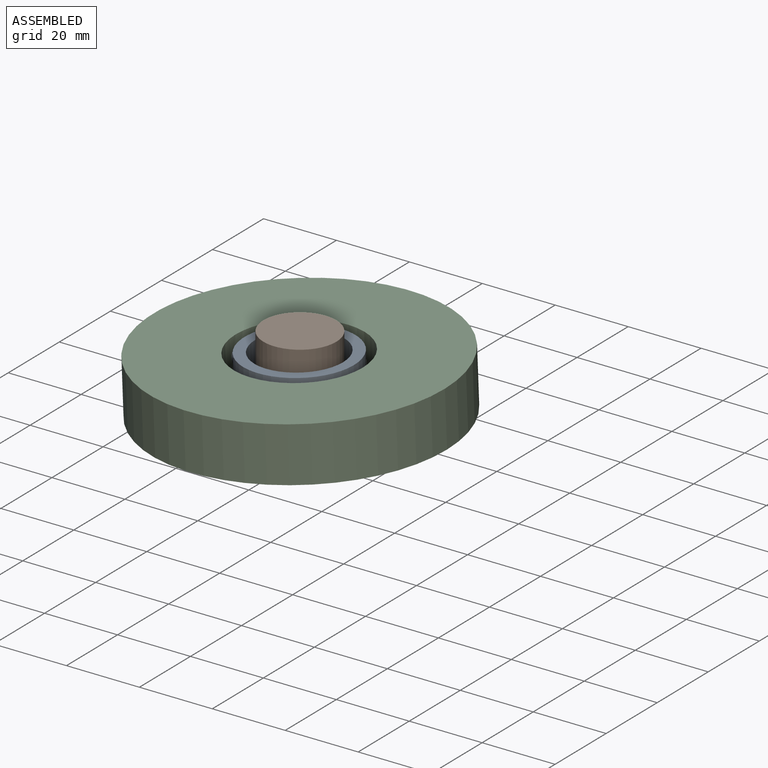
[diagram: assembled view]
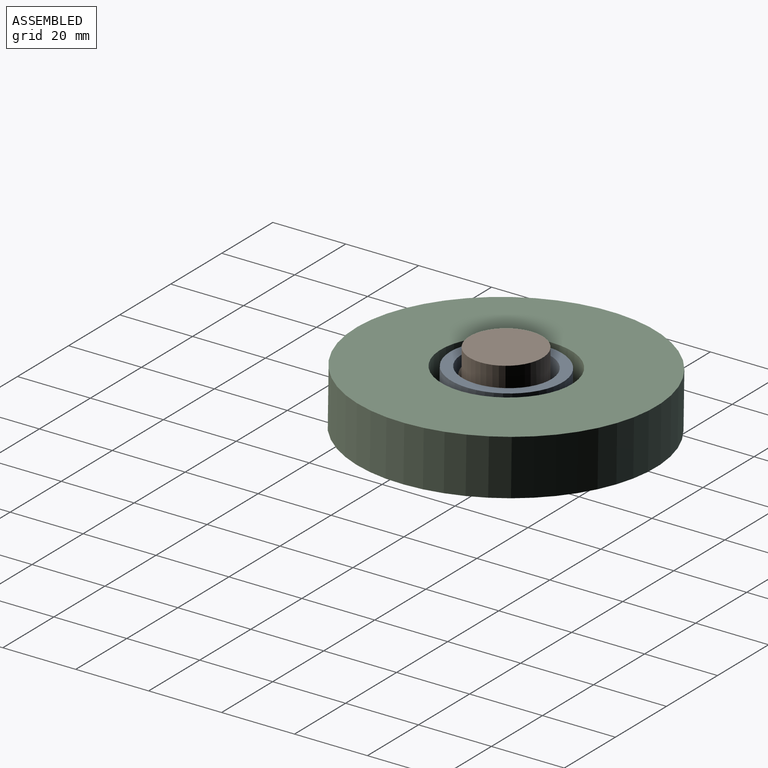
[diagram: assembled view, second angle]
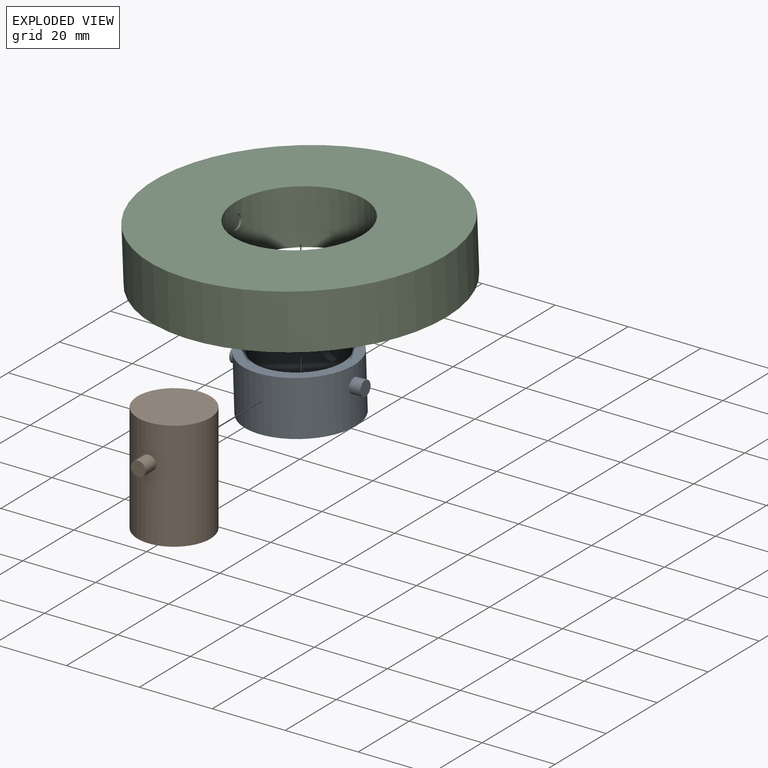
[diagram: exploded view]
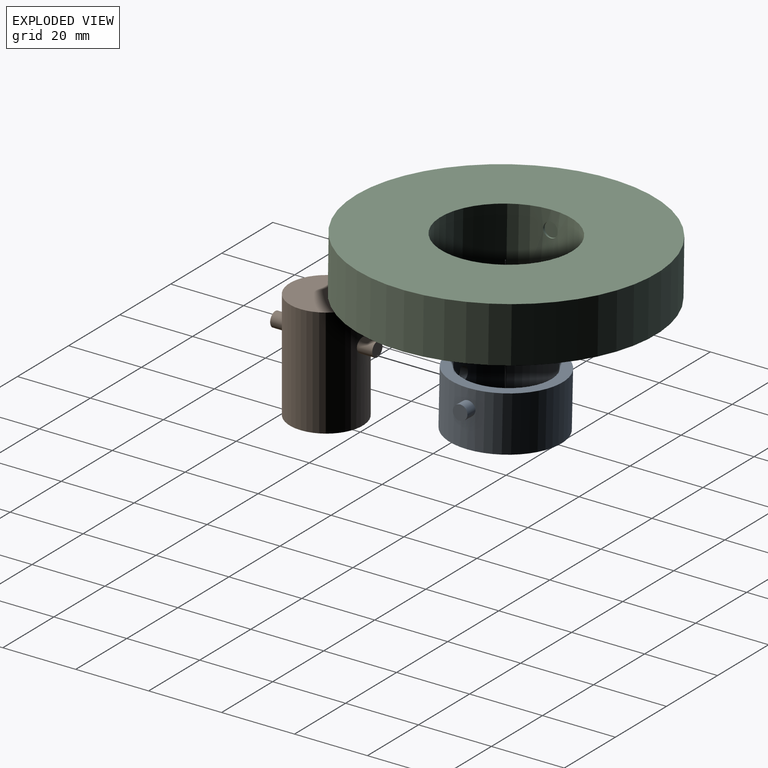
[diagram: exploded view, second angle]
ASSEMBLY  parts=3 mates=2
PART A: 12 faces, bbox 36x30x15 mm
  f0: cylinder r=15mm len=30mm, axis (0,0,-1), area 1388.5mm2, adj f2,f3,f8,f10
  f1: cylinder r=12mm len=24mm, axis (0,0,-1), area 1105.8mm2, adj f2,f3,f5,f6
  f2: plane 30x30mm, normal (0,0,1), area 254.5mm2, adj f0,f1
  f3: plane 30x30mm, normal (0,0,-1), area 254.5mm2, adj f0,f1
  f4: plane 4x4mm, normal (0,1,0), area 12.6mm2, adj f5
  f5: cylinder r=2mm len=4mm, axis (0,1,0), area 26.2mm2, adj f1,f4
  f6: cylinder r=2mm len=4mm, axis (0,1,0), area 26.2mm2, adj f1,f7
  f7: plane 4x4mm, normal (0,-1,0), area 12.6mm2, adj f6
  f8: cylinder r=2mm len=4mm, axis (-1,0,0), area 38.5mm2, adj f0,f9
  f9: plane 4x4mm, normal (1,0,0), area 12.6mm2, adj f8
  f10: cylinder r=2mm len=4mm, axis (-1,0,0), area 38.5mm2, adj f0,f11
  f11: plane 4x4mm, normal (-1,0,0), area 12.6mm2, adj f10
PART B: 7 faces, bbox 20x28x30 mm
  f0: cylinder r=10mm len=30mm, axis (0,0,-1), area 1859.8mm2, adj f1,f2,f3,f5
  f1: plane 20x20mm, normal (0,0,1), area 314.2mm2, adj f0
  f2: plane 20x20mm, normal (0,0,-1), area 314.2mm2, adj f0
  f3: cylinder r=2mm len=4.2mm, axis (0,1,0), area 51.5mm2, adj f0,f4
  f4: plane 4x4mm, normal (0,1,0), area 12.6mm2, adj f3
  f5: cylinder r=2mm len=4.2mm, axis (0,1,0), area 51.5mm2, adj f0,f6
  f6: plane 4x4mm, normal (0,-1,0), area 12.6mm2, adj f5
PART C: 8 faces, bbox 80x80x15 mm
  f0: cylinder r=17.5mm len=35mm, axis (0,0,-1), area 1624.1mm2, adj f2,f3,f5,f6
  f1: cylinder r=40mm len=80mm, axis (0,0,-1), area 3769.9mm2, adj f2,f3
  f2: plane 80x80mm, normal (0,0,1), area 4064.4mm2, adj f0,f1
  f3: plane 80x80mm, normal (0,0,-1), area 4064.4mm2, adj f0,f1
  f4: plane 4x4mm, normal (1,0,0), area 12.6mm2, adj f5
  f5: cylinder r=2mm len=4mm, axis (-1,0,0), area 7mm2, adj f0,f4
  f6: cylinder r=2mm len=4mm, axis (-1,0,0), area 7mm2, adj f0,f7
  f7: plane 4x4mm, normal (-1,0,0), area 12.6mm2, adj f6
PLACE A rot(axis=(0,-1,0),1.9deg) t=(0,0,-10)mm
PLACE B t=(0,0,-10)mm
PLACE C rot(axis=(0.23,-0.97,0),2deg) t=(0,0,-10)mm
MATE revolute B.f3 <-> A.f5  axis (0,1,0) through (0,14,-10)mm
MATE revolute C.f5 <-> A.f8  axis (1,0,0.03) through (-17.99,0,-10.61)mm
